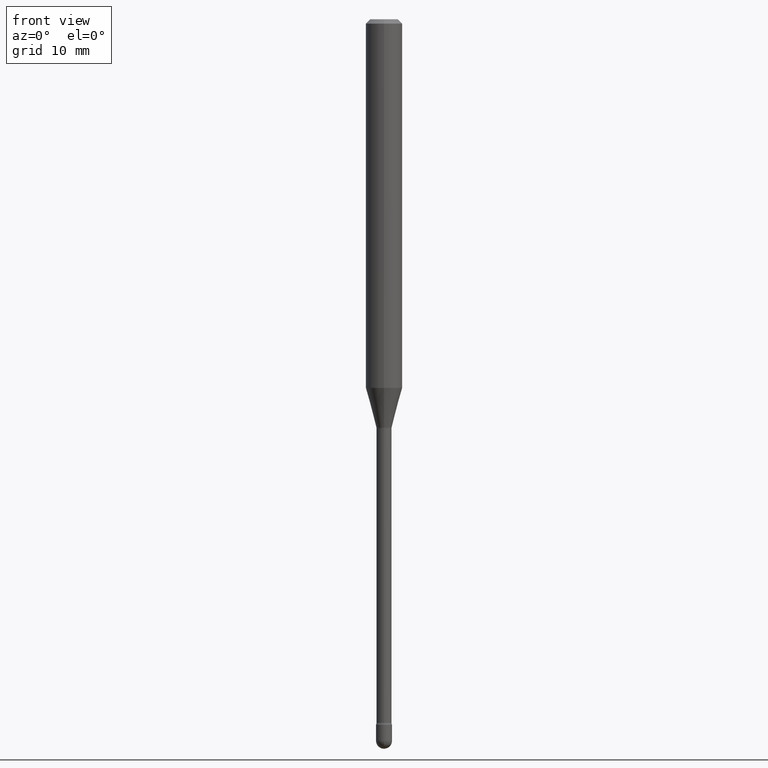
[diagram: clean part render]
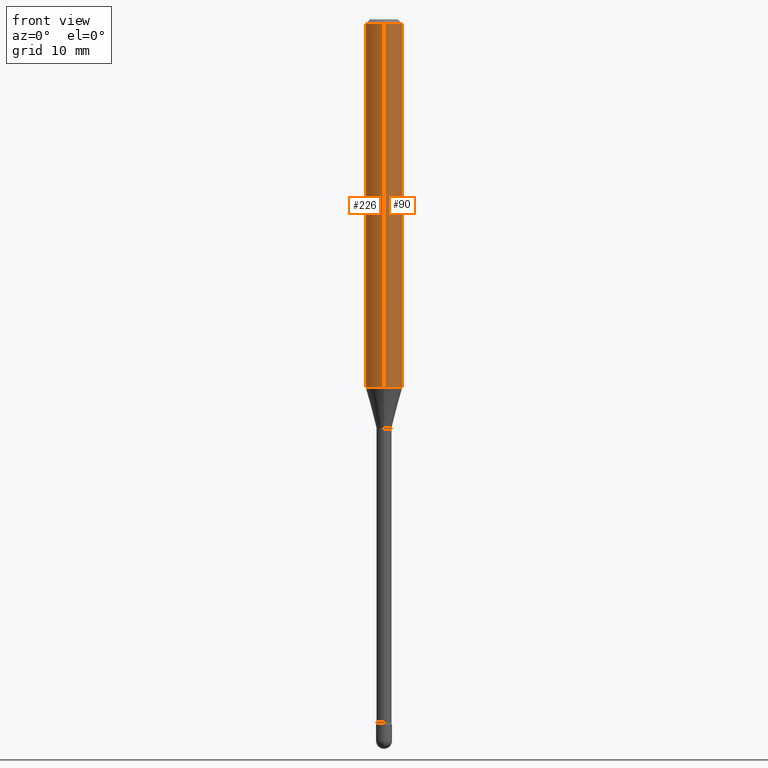
[diagram: same view with one multi-face feature highlighted, each face labeled with its STEP entity id]
A machine part, front view. The highlighted faces form ONE feature: a constant-radius fillet chain: 2 tangent blend faces with common blend radius 1.5875 mm. The faces share edges in the B-rep.
Their STEP definitions:
[1] entity #226 (Cylinder):
#8 = CARTESIAN_POINT ( 'NONE',  ( 4.440892098500932831E-16, 0.06249999999999556605, -1.263220337902600798 ) ) ;
#11 = ORIENTED_EDGE ( 'NONE', *, *, #436, .F. ) ;
#19 = AXIS2_PLACEMENT_3D ( 'NONE', #126, #476, #255 ) ;
#25 = VERTEX_POINT ( 'NONE', #56 ) ;
#28 = DIRECTION ( 'NONE',  ( -6.982962677686265922E-15, -1.000000000000000000, 4.370956789862821150E-15 ) ) ;
#40 = EDGE_CURVE ( 'NONE', #155, #201, #302, .T. ) ;
#56 = CARTESIAN_POINT ( 'NONE',  ( 4.440892098500935790E-16, 0.06249999999999993755, -0.01500000000000030129 ) ) ;
#66 = EDGE_LOOP ( 'NONE', ( #11, #318, #417, #460 ) ) ;
#83 = FACE_OUTER_BOUND ( 'NONE', #66, .T. ) ;
#126 = CARTESIAN_POINT ( 'NONE',  ( -1.169113584055446105E-44, 1.669184350826100908E-30, 4.780733988912460139E-16 ) ) ;
#131 = CYLINDRICAL_SURFACE ( 'NONE', #19, 0.06250000000000000000 ) ;
#148 = CARTESIAN_POINT ( 'NONE',  ( 3.668130001617172351E-31, -5.237326845801380200E-17, -0.01500000000000008271 ) ) ;
#155 = VERTEX_POINT ( 'NONE', #242 ) ;
#176 = EDGE_CURVE ( 'NONE', #508, #155, #564, .T. ) ;
#201 = VERTEX_POINT ( 'NONE', #562 ) ;
#212 = LINE ( 'NONE', #380, #300 ) ;
#226 = ADVANCED_FACE ( 'NONE', ( #83 ), #131, .T. ) ;
#242 = CARTESIAN_POINT ( 'NONE',  ( -4.364351673553609038E-16, -0.06250000000000442701, -1.263220337902600354 ) ) ;
#244 = DIRECTION ( 'NONE',  ( -2.445420001078101296E-29, 3.491551230534234238E-15, 1.000000000000000000 ) ) ;
#255 = DIRECTION ( 'NONE',  ( -6.982962677686265922E-15, -1.000000000000000000, 3.491551230534235027E-15 ) ) ;
#260 = CARTESIAN_POINT ( 'NONE',  ( -4.364351673553916201E-16, -0.06250000000000000000, 6.962953507996357031E-16 ) ) ;
#300 = VECTOR ( 'NONE', #422, 39.37007874015748143 ) ;
#302 = LINE ( 'NONE', #260, #540 ) ;
#318 = ORIENTED_EDGE ( 'NONE', *, *, #176, .T. ) ;
#365 = AXIS2_PLACEMENT_3D ( 'NONE', #527, #441, #28 ) ;
#380 = CARTESIAN_POINT ( 'NONE',  ( 4.440892098500625669E-16, 0.06250000000000000000, 2.598514469828564234E-16 ) ) ;
#417 = ORIENTED_EDGE ( 'NONE', *, *, #40, .T. ) ;
#422 = DIRECTION ( 'NONE',  ( -2.445420001078101296E-29, 3.491551230534233844E-15, 1.000000000000000000 ) ) ;
#433 = CIRCLE ( 'NONE', #461, 0.06250000000000000000 ) ;
#435 = DIRECTION ( 'NONE',  ( -2.445420001078101296E-29, 3.491551230534233844E-15, 1.000000000000000000 ) ) ;
#436 = EDGE_CURVE ( 'NONE', #508, #25, #212, .T. ) ;
#441 = DIRECTION ( 'NONE',  ( -2.445420001078101296E-29, 3.491551230534234238E-15, 1.000000000000000000 ) ) ;
#460 = ORIENTED_EDGE ( 'NONE', *, *, #477, .F. ) ;
#461 = AXIS2_PLACEMENT_3D ( 'NONE', #148, #244, #523 ) ;
#476 = DIRECTION ( 'NONE',  ( -2.445420001078101296E-29, 3.491551230534234238E-15, 1.000000000000000000 ) ) ;
#477 = EDGE_CURVE ( 'NONE', #25, #201, #433, .T. ) ;
#508 = VERTEX_POINT ( 'NONE', #8 ) ;
#523 = DIRECTION ( 'NONE',  ( -6.982962677686265922E-15, -1.000000000000000000, 3.483106191921935554E-15 ) ) ;
#527 = CARTESIAN_POINT ( 'NONE',  ( 3.089104280075657330E-29, -4.410598525239695969E-15, -1.263220337902600576 ) ) ;
#540 = VECTOR ( 'NONE', #435, 39.37007874015748143 ) ;
#562 = CARTESIAN_POINT ( 'NONE',  ( -4.364351673553912750E-16, -0.06250000000000005551, -0.01499999999999986587 ) ) ;
#564 = CIRCLE ( 'NONE', #365, 0.06250000000000000000 ) ;
[2] entity #90 (Cylinder):
#8 = CARTESIAN_POINT ( 'NONE',  ( 4.440892098500932831E-16, 0.06249999999999556605, -1.263220337902600798 ) ) ;
#21 = ORIENTED_EDGE ( 'NONE', *, *, #436, .T. ) ;
#22 = EDGE_CURVE ( 'NONE', #201, #25, #115, .T. ) ;
#25 = VERTEX_POINT ( 'NONE', #56 ) ;
#34 = DIRECTION ( 'NONE',  ( -2.445420001078101296E-29, 3.491551230534234238E-15, 1.000000000000000000 ) ) ;
#40 = EDGE_CURVE ( 'NONE', #155, #201, #302, .T. ) ;
#56 = CARTESIAN_POINT ( 'NONE',  ( 4.440892098500935790E-16, 0.06249999999999993755, -0.01500000000000030129 ) ) ;
#90 = ADVANCED_FACE ( 'NONE', ( #356 ), #314, .T. ) ;
#115 = CIRCLE ( 'NONE', #398, 0.06250000000000000000 ) ;
#155 = VERTEX_POINT ( 'NONE', #242 ) ;
#159 = ORIENTED_EDGE ( 'NONE', *, *, #22, .F. ) ;
#196 = CARTESIAN_POINT ( 'NONE',  ( -1.169113584055446105E-44, 1.669184350826100908E-30, 4.780733988912460139E-16 ) ) ;
#201 = VERTEX_POINT ( 'NONE', #562 ) ;
#212 = LINE ( 'NONE', #380, #300 ) ;
#218 = EDGE_CURVE ( 'NONE', #155, #508, #494, .T. ) ;
#221 = AXIS2_PLACEMENT_3D ( 'NONE', #301, #342, #473 ) ;
#224 = DIRECTION ( 'NONE',  ( -6.982962677686265922E-15, -1.000000000000000000, 3.483106191921935554E-15 ) ) ;
#232 = DIRECTION ( 'NONE',  ( -2.445420001078101296E-29, 3.491551230534234238E-15, 1.000000000000000000 ) ) ;
#235 = ORIENTED_EDGE ( 'NONE', *, *, #40, .F. ) ;
#242 = CARTESIAN_POINT ( 'NONE',  ( -4.364351673553609038E-16, -0.06250000000000442701, -1.263220337902600354 ) ) ;
#260 = CARTESIAN_POINT ( 'NONE',  ( -4.364351673553916201E-16, -0.06250000000000000000, 6.962953507996357031E-16 ) ) ;
#294 = AXIS2_PLACEMENT_3D ( 'NONE', #196, #34, #538 ) ;
#300 = VECTOR ( 'NONE', #422, 39.37007874015748143 ) ;
#301 = CARTESIAN_POINT ( 'NONE',  ( 3.089104280075657330E-29, -4.410598525239695969E-15, -1.263220337902600576 ) ) ;
#302 = LINE ( 'NONE', #260, #540 ) ;
#314 = CYLINDRICAL_SURFACE ( 'NONE', #294, 0.06250000000000000000 ) ;
#342 = DIRECTION ( 'NONE',  ( -2.445420001078101296E-29, 3.491551230534234238E-15, 1.000000000000000000 ) ) ;
#356 = FACE_OUTER_BOUND ( 'NONE', #464, .T. ) ;
#380 = CARTESIAN_POINT ( 'NONE',  ( 4.440892098500625669E-16, 0.06250000000000000000, 2.598514469828564234E-16 ) ) ;
#398 = AXIS2_PLACEMENT_3D ( 'NONE', #480, #232, #224 ) ;
#422 = DIRECTION ( 'NONE',  ( -2.445420001078101296E-29, 3.491551230534233844E-15, 1.000000000000000000 ) ) ;
#435 = DIRECTION ( 'NONE',  ( -2.445420001078101296E-29, 3.491551230534233844E-15, 1.000000000000000000 ) ) ;
#436 = EDGE_CURVE ( 'NONE', #508, #25, #212, .T. ) ;
#464 = EDGE_LOOP ( 'NONE', ( #535, #21, #159, #235 ) ) ;
#473 = DIRECTION ( 'NONE',  ( -6.982962677686265922E-15, -1.000000000000000000, 4.370956789862821150E-15 ) ) ;
#480 = CARTESIAN_POINT ( 'NONE',  ( 3.668130001617172351E-31, -5.237326845801380200E-17, -0.01500000000000008271 ) ) ;
#494 = CIRCLE ( 'NONE', #221, 0.06250000000000000000 ) ;
#508 = VERTEX_POINT ( 'NONE', #8 ) ;
#535 = ORIENTED_EDGE ( 'NONE', *, *, #218, .T. ) ;
#538 = DIRECTION ( 'NONE',  ( -6.982962677686265922E-15, -1.000000000000000000, 3.491551230534235027E-15 ) ) ;
#540 = VECTOR ( 'NONE', #435, 39.37007874015748143 ) ;
#562 = CARTESIAN_POINT ( 'NONE',  ( -4.364351673553912750E-16, -0.06250000000000005551, -0.01499999999999986587 ) ) ;